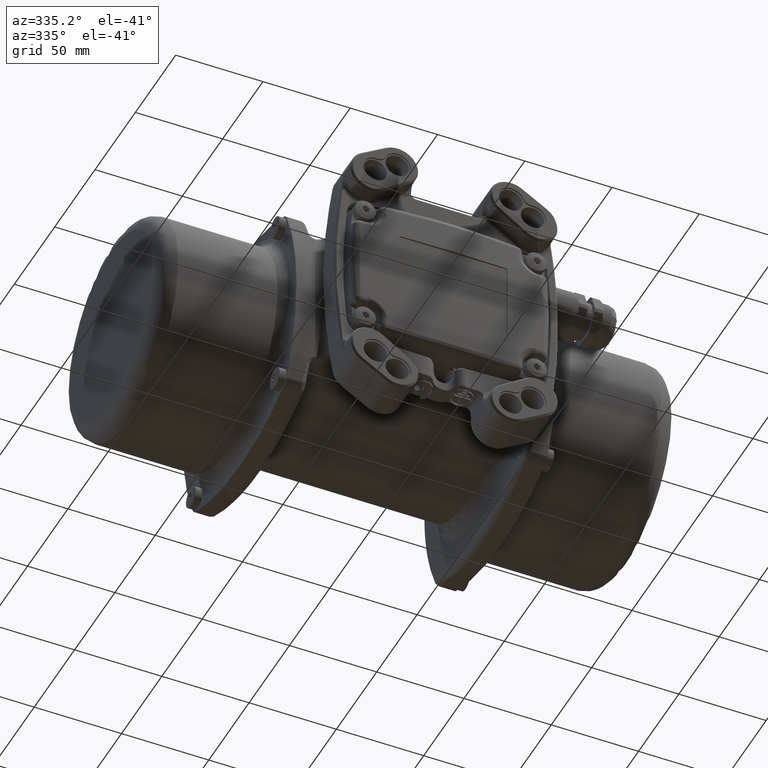
[diagram: clean part render]
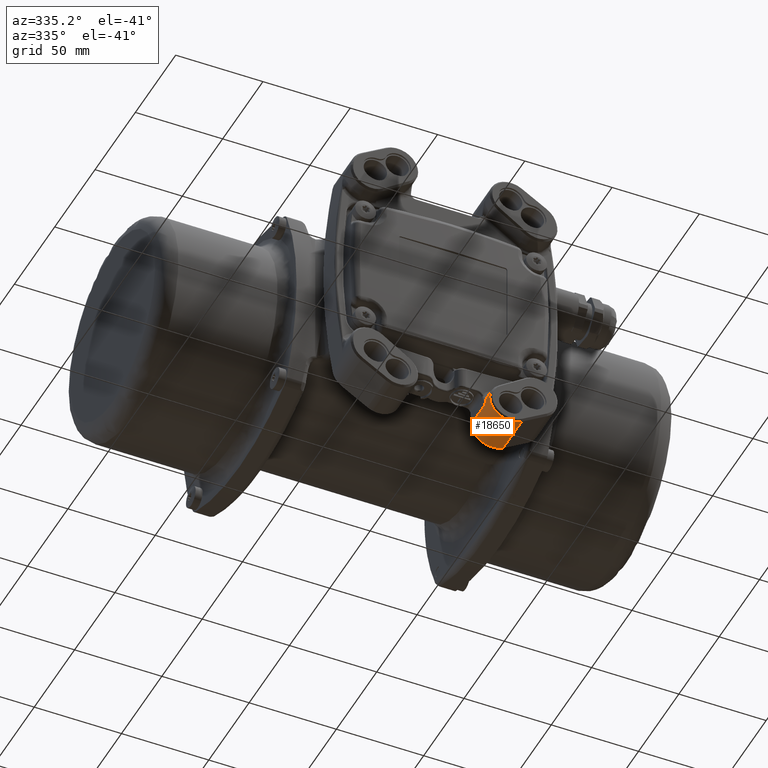
[diagram: same view with one face highlighted and labeled with its STEP entity id]
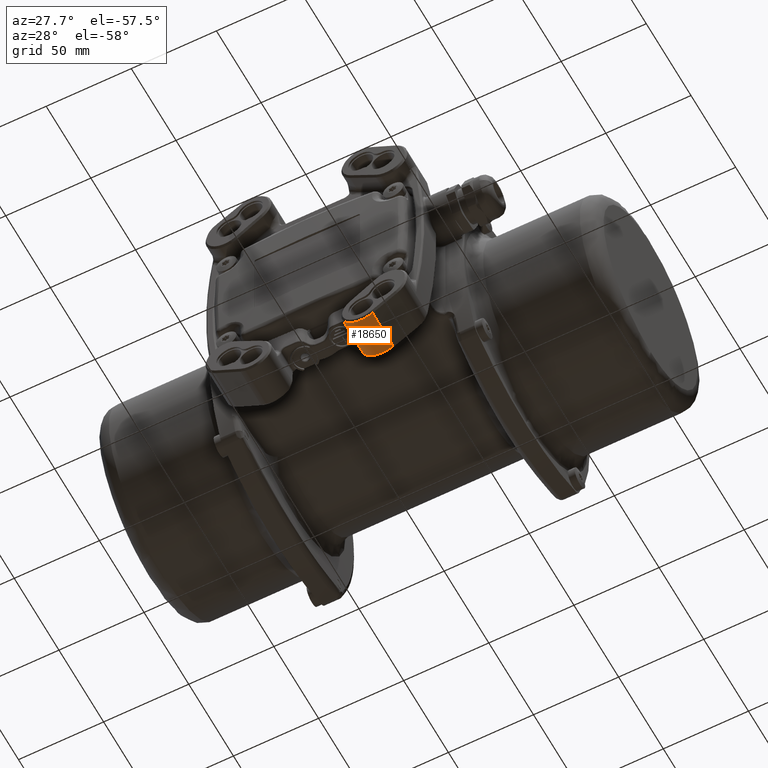
[diagram: same view with one face highlighted and labeled with its STEP entity id]
A machine part, auxiliary view. The second image highlights one B-rep face of the part: STEP entity #18650.
A second angle (auxiliary view) of the same face is appended — the face is thin or edge-on in the first view.
In plain terms, the highlighted cylindrical surface (edge-blend (fillet) strip) has radius 12 mm, axis along (0, -1, -0).
Its self-contained STEP definition (entity closure, byte-faithful):
#2576 = ORIENTED_EDGE ( 'NONE', *, *, #61102, .T. ) ;
#3836 = CARTESIAN_POINT ( 'NONE',  ( 20.50731007577080000, -95.00000000000000000, -70.41879396043010800 ) ) ;
#3993 = VECTOR ( 'NONE', #121544, 1000.000000000000000 ) ;
#6674 = VERTEX_POINT ( 'NONE', #107597 ) ;
#7394 = DIRECTION ( 'NONE',  ( 0.0000000000000000000, 0.0000000000000000000, -1.000000000000000000 ) ) ;
#8664 = ORIENTED_EDGE ( 'NONE', *, *, #101864, .T. ) ;
#9305 = AXIS2_PLACEMENT_3D ( 'NONE', #138207, #99777, #77147 ) ;
#11916 = DIRECTION ( 'NONE',  ( 5.773171773799138800E-049, -1.000000000000000000, -2.042470651928919900E-017 ) ) ;
#15193 = DIRECTION ( 'NONE',  ( 5.773171773799138800E-049, -1.000000000000000000, -2.042470651928919900E-017 ) ) ;
#15784 = EDGE_CURVE ( 'NONE', #6674, #89765, #19614, .T. ) ;
#16916 = EDGE_CURVE ( 'NONE', #105264, #6674, #95908, .T. ) ;
#17397 = DIRECTION ( 'NONE',  ( 0.0000000000000000000, 0.0000000000000000000, -1.000000000000000000 ) ) ;
#18650 = ADVANCED_FACE ( 'NONE', ( #23310 ), #113879, .T. ) ;
#19614 = LINE ( 'NONE', #3836, #34260 ) ;
#20925 = AXIS2_PLACEMENT_3D ( 'NONE', #111674, #57442, #93574 ) ;
#23310 = FACE_OUTER_BOUND ( 'NONE', #115718, .T. ) ;
#26820 = VECTOR ( 'NONE', #11916, 1000.000000000000000 ) ;
#28763 = CARTESIAN_POINT ( 'NONE',  ( 32.50000000000000000, -98.00000000000000000, -70.00000000000000000 ) ) ;
#30819 = AXIS2_PLACEMENT_3D ( 'NONE', #28763, #15193, #17397 ) ;
#31362 = CIRCLE ( 'NONE', #20925, 11.99999999999999600 ) ;
#34260 = VECTOR ( 'NONE', #40101, 1000.000000000000000 ) ;
#35539 = LINE ( 'NONE', #74116, #3993 ) ;
#40101 = DIRECTION ( 'NONE',  ( 5.773171773799148700E-049, -1.000000000000000000, -2.042470651928919900E-017 ) ) ;
#49090 = CARTESIAN_POINT ( 'NONE',  ( 20.50731007577085000, -98.00000000000000000, -70.41879396043010800 ) ) ;
#49646 = ORIENTED_EDGE ( 'NONE', *, *, #53954, .T. ) ;
#53954 = EDGE_CURVE ( 'NONE', #77976, #64896, #35539, .T. ) ;
#56836 = CARTESIAN_POINT ( 'NONE',  ( 38.82835434133780000, -81.00000000000000000, -80.19568199437750900 ) ) ;
#57053 = VERTEX_POINT ( 'NONE', #63096 ) ;
#57442 = DIRECTION ( 'NONE',  ( -5.773171773799138800E-049, 1.000000000000000000, 2.042470651928919900E-017 ) ) ;
#61102 = EDGE_CURVE ( 'NONE', #57053, #77976, #31362, .T. ) ;
#63096 = CARTESIAN_POINT ( 'NONE',  ( 38.82835434133780000, -104.0000000000000000, -80.19568199437750900 ) ) ;
#64896 = VERTEX_POINT ( 'NONE', #127745 ) ;
#66356 = CARTESIAN_POINT ( 'NONE',  ( 32.50000000000000000, -80.00000000000000000, -70.00000000000000000 ) ) ;
#68563 = DIRECTION ( 'NONE',  ( 5.773171773799138800E-049, -1.000000000000000000, -2.042470651928919900E-017 ) ) ;
#74116 = CARTESIAN_POINT ( 'NONE',  ( 25.61708276378739800, -80.00000000000000000, -60.17017546853209400 ) ) ;
#77147 = DIRECTION ( 'NONE',  ( 0.0000000000000000000, 0.0000000000000000000, 1.000000000000000000 ) ) ;
#77976 = VERTEX_POINT ( 'NONE', #99539 ) ;
#87810 = ORIENTED_EDGE ( 'NONE', *, *, #15784, .F. ) ;
#89765 = VERTEX_POINT ( 'NONE', #49090 ) ;
#93574 = DIRECTION ( 'NONE',  ( 0.0000000000000000000, 0.0000000000000000000, -1.000000000000000000 ) ) ;
#95908 = CIRCLE ( 'NONE', #9305, 11.99999999999999600 ) ;
#99539 = CARTESIAN_POINT ( 'NONE',  ( 25.61708276378739800, -104.0000000000000000, -60.17017546853209400 ) ) ;
#99777 = DIRECTION ( 'NONE',  ( -5.773171773799138800E-049, 1.000000000000000000, 2.042470651928919900E-017 ) ) ;
#101864 = EDGE_CURVE ( 'NONE', #105264, #57053, #136475, .T. ) ;
#105264 = VERTEX_POINT ( 'NONE', #56836 ) ;
#106206 = CIRCLE ( 'NONE', #30819, 11.99999999999999600 ) ;
#107079 = CARTESIAN_POINT ( 'NONE',  ( 38.82835434133780000, -80.00000000000000000, -80.19568199437750900 ) ) ;
#107597 = CARTESIAN_POINT ( 'NONE',  ( 20.50731007577080000, -81.00000000000000000, -70.41879396043010800 ) ) ;
#109512 = EDGE_CURVE ( 'NONE', #64896, #89765, #106206, .T. ) ;
#111674 = CARTESIAN_POINT ( 'NONE',  ( 32.50000000000000000, -104.0000000000000000, -70.00000000000000000 ) ) ;
#112799 = ORIENTED_EDGE ( 'NONE', *, *, #109512, .T. ) ;
#113879 = CYLINDRICAL_SURFACE ( 'NONE', #137696, 11.99999999999999600 ) ;
#115718 = EDGE_LOOP ( 'NONE', ( #112799, #87810, #124400, #8664, #2576, #49646 ) ) ;
#121544 = DIRECTION ( 'NONE',  ( -5.773171773799138800E-049, 1.000000000000000000, 2.042470651928919900E-017 ) ) ;
#124400 = ORIENTED_EDGE ( 'NONE', *, *, #16916, .F. ) ;
#127745 = CARTESIAN_POINT ( 'NONE',  ( 25.61708276378739800, -98.00000000000000000, -60.17017546853209400 ) ) ;
#136475 = LINE ( 'NONE', #107079, #26820 ) ;
#137696 = AXIS2_PLACEMENT_3D ( 'NONE', #66356, #68563, #7394 ) ;
#138207 = CARTESIAN_POINT ( 'NONE',  ( 32.50000000000000000, -81.00000000000000000, -70.00000000000000000 ) ) ;